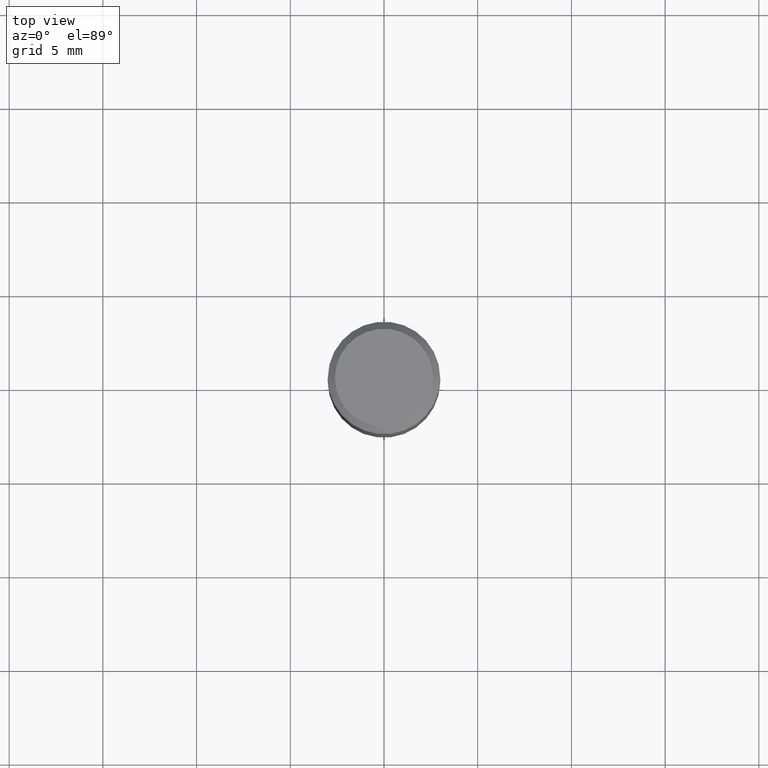
[diagram: clean part render]
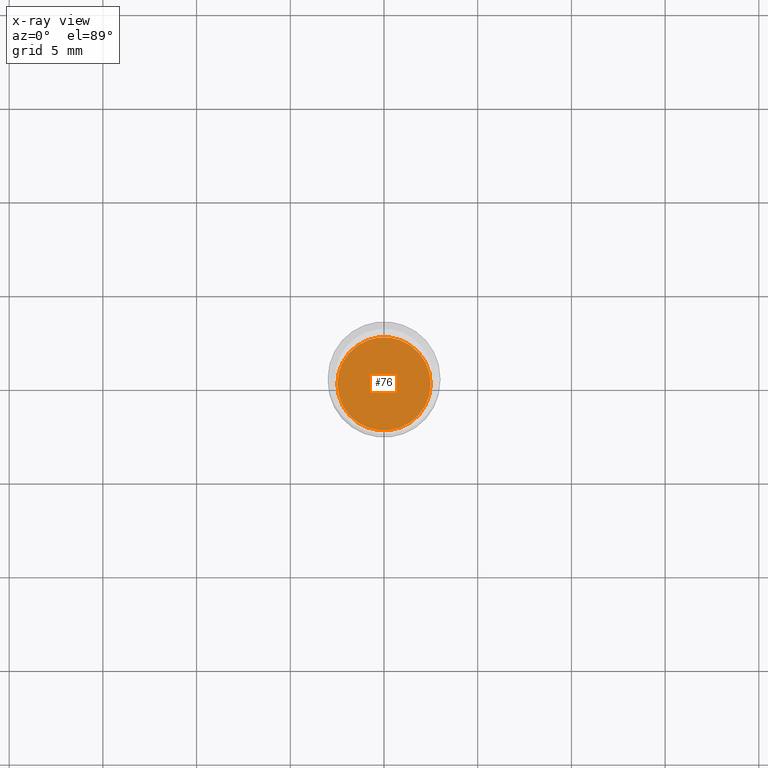
[diagram: x-ray — body ghosted, one internal face saturated and labeled with its STEP entity id]
A machine part, top view, then the same camera in x-ray: the body is ghosted and one INTERNAL B-rep face — a face not visible from any outside direction — is saturated and labeled: STEP entity #76.
In plain terms, the highlighted planar face has unit normal (-0, 0, 1).
Its self-contained STEP definition (entity closure, byte-faithful):
#12 = DIRECTION ( 'NONE',  ( -2.438088387897960049E-29, 3.491481338843145188E-15, 1.000000000000000000 ) ) ;
#47 = PLANE ( 'NONE',  #175 ) ;
#76 = ADVANCED_FACE ( 'NONE', ( #363 ), #47, .F. ) ;
#85 = DIRECTION ( 'NONE',  ( -2.445468806185136597E-29, 3.491481338843145583E-15, 1.000000000000000000 ) ) ;
#102 = CARTESIAN_POINT ( 'NONE',  ( 1.838992542251222813E-29, -2.625593966810045497E-15, -0.7520000000000001128 ) ) ;
#104 = VERTEX_POINT ( 'NONE', #353 ) ;
#155 = EDGE_LOOP ( 'NONE', ( #251, #179 ) ) ;
#158 = AXIS2_PLACEMENT_3D ( 'NONE', #221, #85, #437 ) ;
#171 = CARTESIAN_POINT ( 'NONE',  ( -0.09794999999999999540, -1.926968129958916295E-15, -0.7520000000000001128 ) ) ;
#175 = AXIS2_PLACEMENT_3D ( 'NONE', #187, #12, #259 ) ;
#179 = ORIENTED_EDGE ( 'NONE', *, *, #446, .F. ) ;
#187 = CARTESIAN_POINT ( 'NONE',  ( 1.838992542251222813E-29, -2.625593966810045497E-15, -0.7520000000000001128 ) ) ;
#221 = CARTESIAN_POINT ( 'NONE',  ( 1.838992542251222813E-29, -2.625593966810045497E-15, -0.7520000000000001128 ) ) ;
#246 = DIRECTION ( 'NONE',  ( -2.445468806185136597E-29, 3.491481338843145583E-15, 1.000000000000000000 ) ) ;
#251 = ORIENTED_EDGE ( 'NONE', *, *, #388, .F. ) ;
#259 = DIRECTION ( 'NONE',  ( 1.000000000000000000, -6.982962677686265922E-15, 4.876176775795935793E-29 ) ) ;
#268 = AXIS2_PLACEMENT_3D ( 'NONE', #102, #246, #418 ) ;
#312 = VERTEX_POINT ( 'NONE', #171 ) ;
#353 = CARTESIAN_POINT ( 'NONE',  ( 0.09794999999999999540, -3.309575161089415444E-15, -0.7520000000000001128 ) ) ;
#359 = CIRCLE ( 'NONE', #158, 0.09794999999999999540 ) ;
#363 = FACE_OUTER_BOUND ( 'NONE', #155, .T. ) ;
#384 = CIRCLE ( 'NONE', #268, 0.09794999999999999540 ) ;
#388 = EDGE_CURVE ( 'NONE', #104, #312, #384, .T. ) ;
#418 = DIRECTION ( 'NONE',  ( 1.000000000000000000, -6.982962677686265133E-15, 0.000000000000000000 ) ) ;
#437 = DIRECTION ( 'NONE',  ( 1.000000000000000000, -6.982962677686265133E-15, 0.000000000000000000 ) ) ;
#446 = EDGE_CURVE ( 'NONE', #312, #104, #359, .T. ) ;